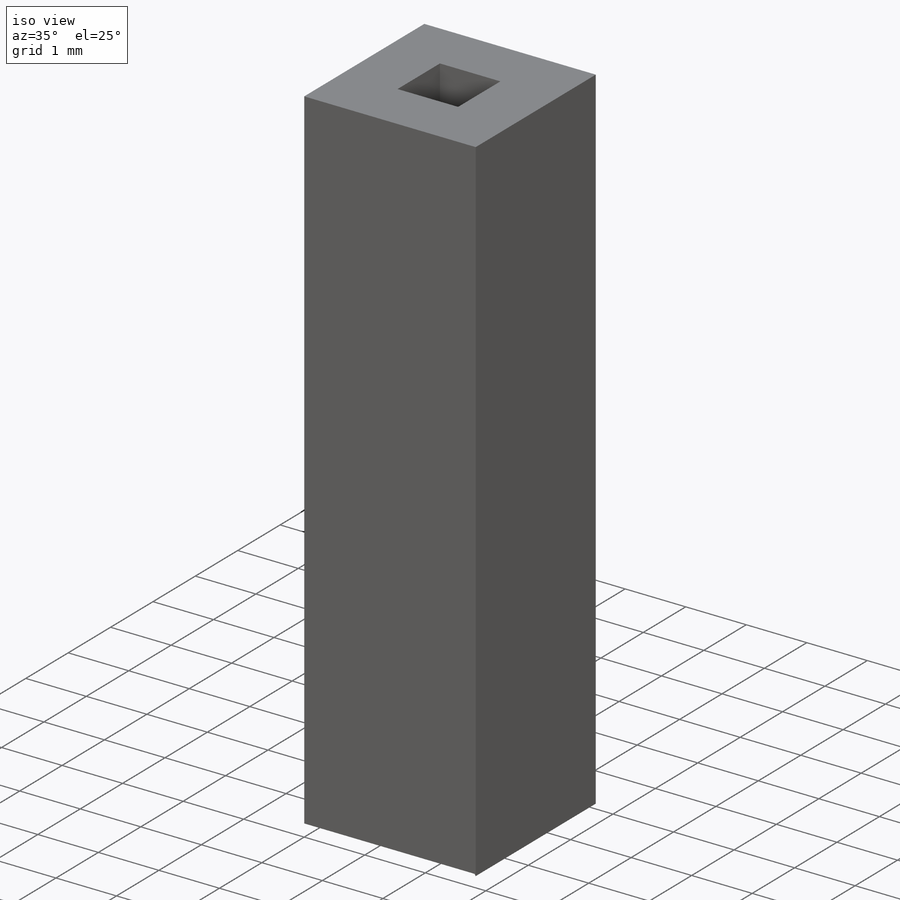
[diagram: iso view]
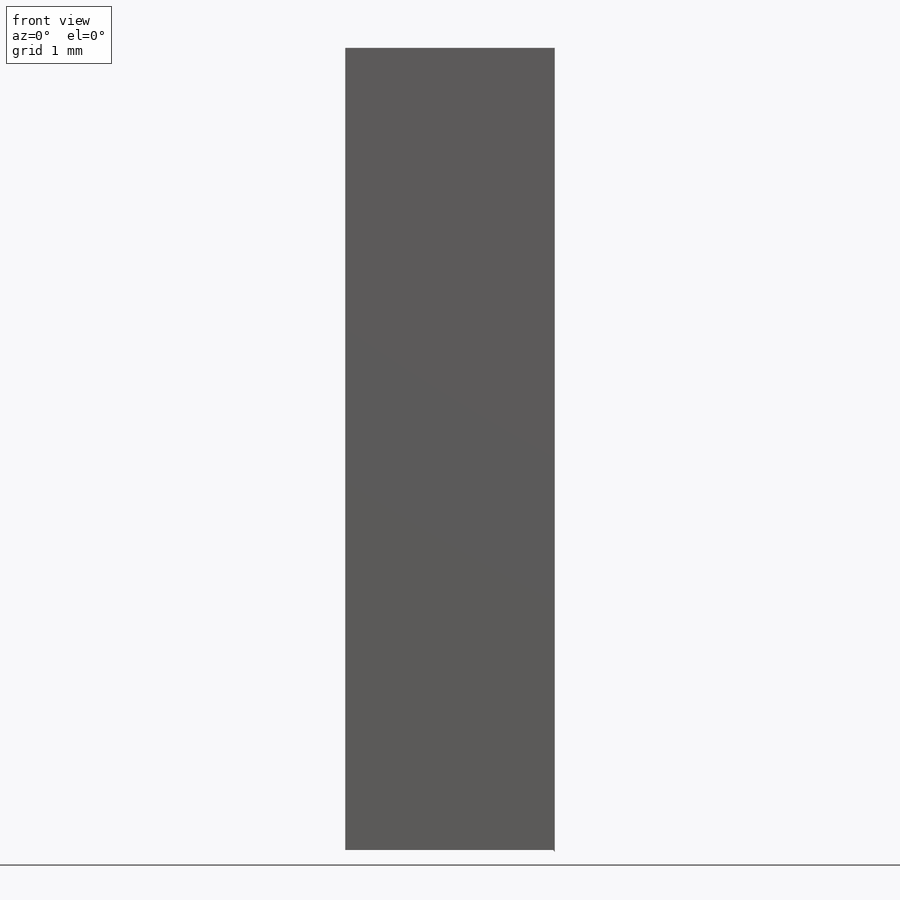
[diagram: front view]
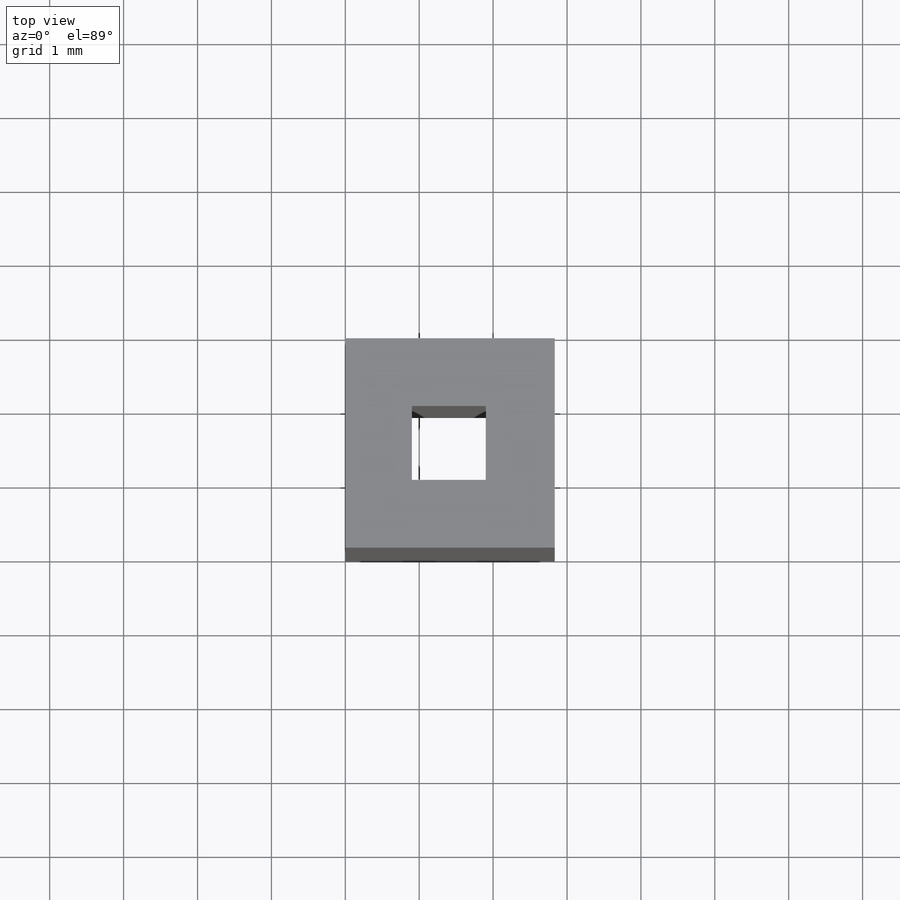
[diagram: top view]
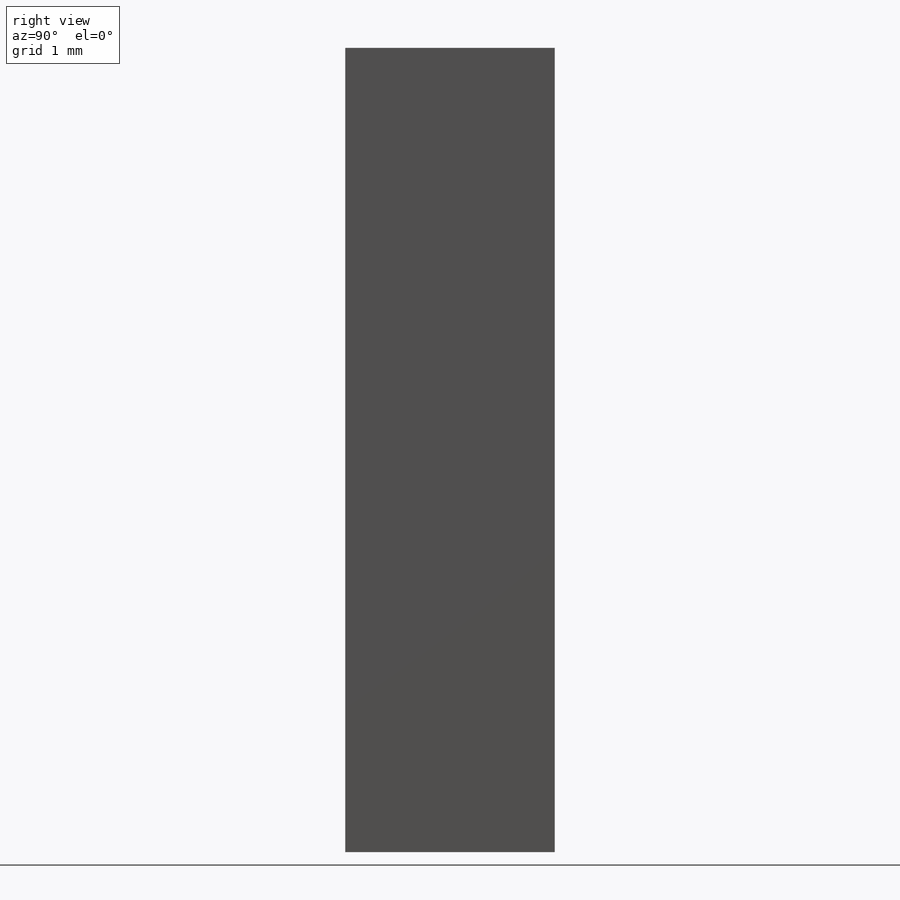
[diagram: right view]
SOLIDWORKS PART (.sldprt)
format: sldprt  version: not decoded by parser v0  size: 120,832 bytes
history: native  units: mm
features: sketch x4, material x1, extrude x1, cut_extrude x1, chamfer x1 (+12 scaffold rows collapsed)
feature tree (20):
  scaffold x12  (default folders/planes/origin — collapsed)
  material  "Material <not specified>"
  sketch  "Sketch1"
  sketch  "AlignGroup2"  dims[D1=~2.83333mm]
  extrude  "Boss-Extrude2"  Depth=11mm
  sketch  "Sketch2"  dims[c1.D1=1.0mm c1.D2=~0.759165mm c2.D2=90.0deg c3.D2=0.9mm c3.D3=~1.030955mm]
  cut_extrude  "Cut-Extrude1"  Depth=11mm
  sketch  "Sketch4"
  chamfer  "Chamfer5"  Distance=1mm Angle=60deg
decode coverage: 5 of 7 modeling features carry decoded parameters
note: ~ marks probable driven/reference dimensions
note: suppression state not decoded; provenance and decode notes live in map.json
